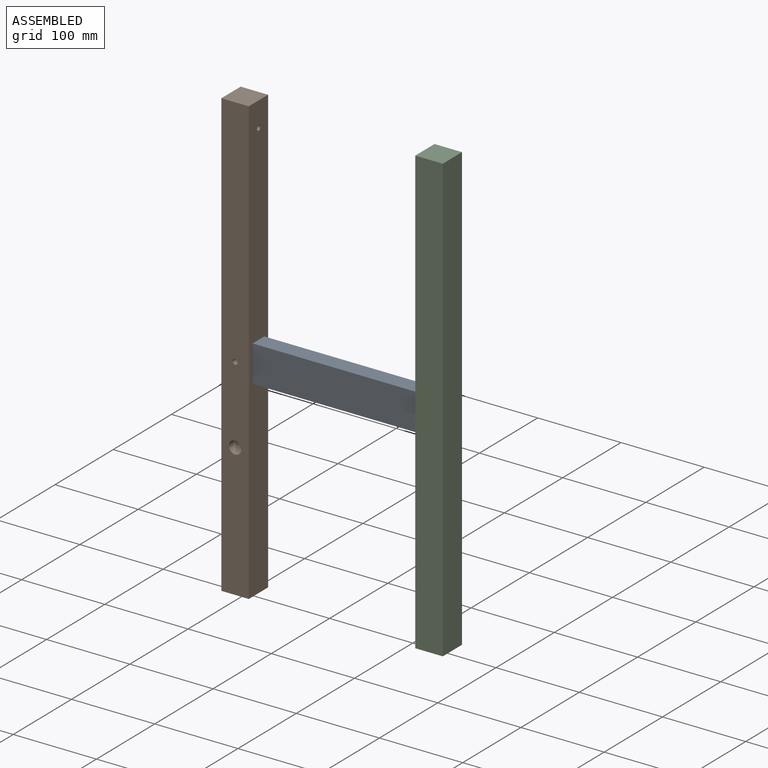
[diagram: assembled view]
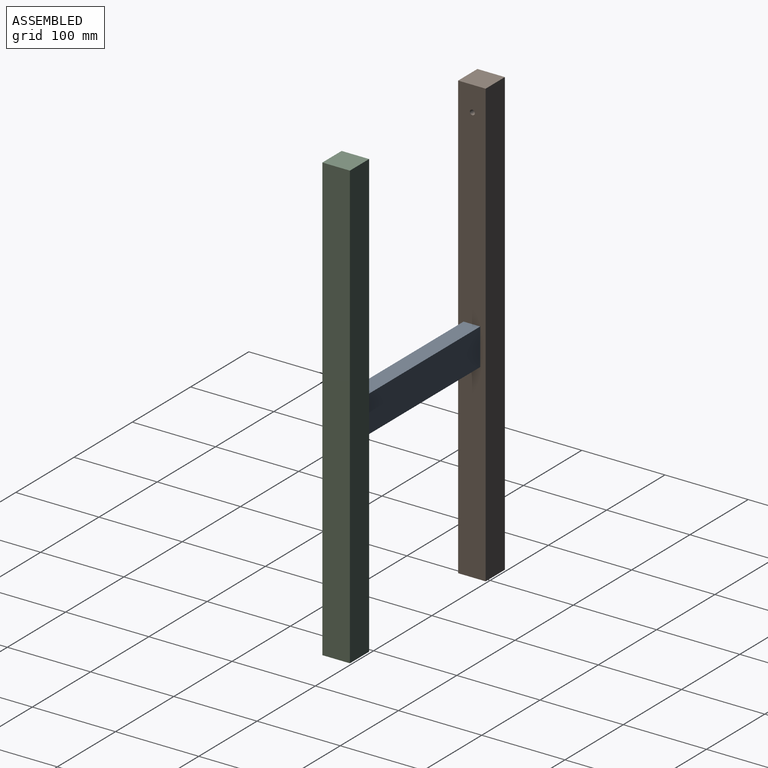
[diagram: assembled view, second angle]
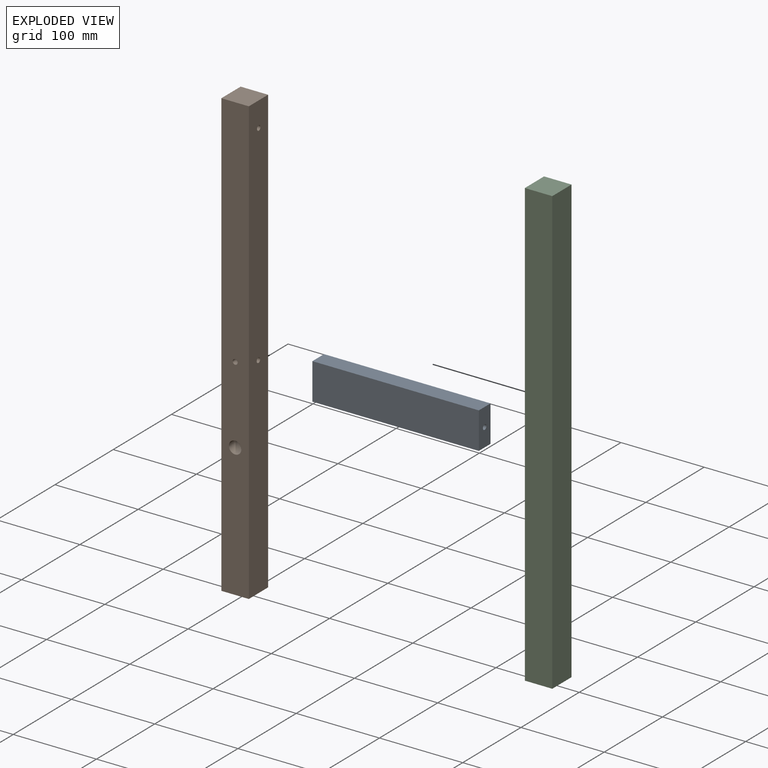
[diagram: exploded view]
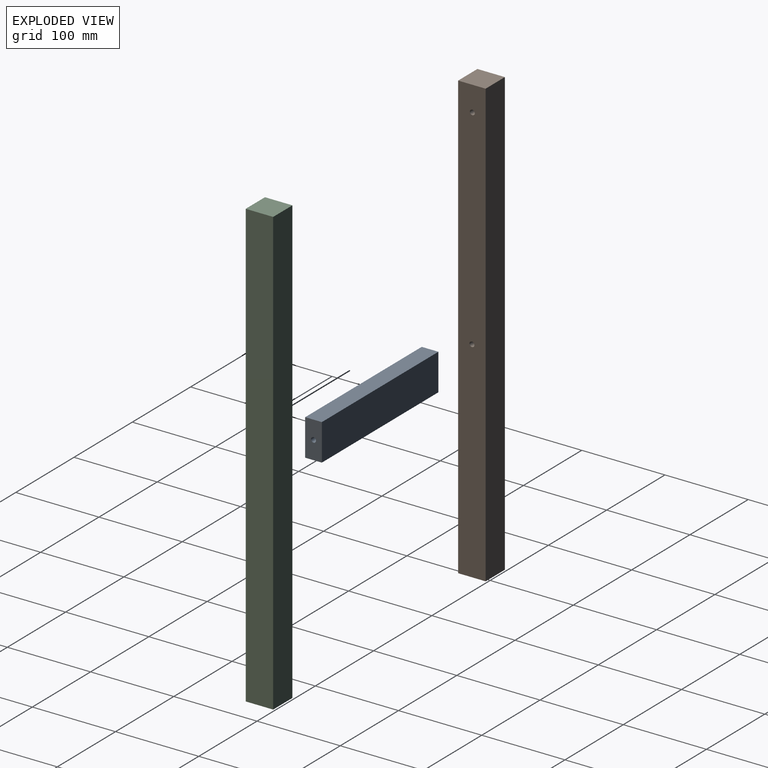
[diagram: exploded view, second angle]
ASSEMBLY  parts=3 mates=2
PART A: 10 faces, bbox 200x20x44 mm
  f0: plane 200x20mm, normal (0,0,1), area 4000mm2, adj f1,f3,f4,f5
  f1: plane 44x20mm, normal (-1,0,0), area 851.7mm2, adj f0,f2,f4,f5,f9
  f2: plane 200x20mm, normal (0,0,-1), area 4000mm2, adj f1,f3,f4,f5
  f3: plane 44x20mm, normal (1,0,0), area 851.7mm2, adj f0,f2,f4,f5,f7
  f4: plane 200x44mm, normal (0,-1,0), area 8800mm2, adj f0,f1,f2,f3
  f5: plane 200x44mm, normal (0,1,0), area 8800mm2, adj f0,f1,f2,f3
  f6: cone r=0mm half-angle=59deg, axis (1,0,0), area 33mm2, adj f7
  f7: cylinder r=3mm len=15mm, axis (1,0,0), area 282.7mm2, adj f3,f6
  f8: cone r=0mm half-angle=59deg, axis (-1,0,0), area 33mm2, adj f9
  f9: cylinder r=3mm len=15mm, axis (-1,0,0), area 282.7mm2, adj f1,f8
PART B: 14 faces, bbox 33x33x535 mm
  f0: plane 33x33mm, normal (0,0,1), area 1089mm2, adj f1,f3,f4,f5
  f1: plane 535x33mm, normal (-1,0,0), area 17655mm2, adj f0,f2,f4,f5
  f2: plane 33x33mm, normal (0,0,-1), area 1089mm2, adj f1,f3,f4,f5
  f3: plane 535x33mm, normal (1,0,0), area 17598.5mm2, adj f0,f2,f4,f5,f7,f11
  f4: plane 535x33mm, normal (0,-1,0), area 17450mm2, adj f0,f1,f2,f3,f9,f13
  f5: plane 535x33mm, normal (0,1,0), area 17655mm2, adj f0,f1,f2,f3
  f6: cone r=0mm half-angle=59deg, axis (1,0,0), area 20.9mm2, adj f7,f8
  f7: cylinder r=3mm len=15mm, axis (1,0,0), area 276.6mm2, adj f3,f6,f9
  f8: cone r=0mm half-angle=59deg, axis (0,-1,0), area 20.9mm2, adj f6,f9
  f9: cylinder r=3mm len=15mm, axis (0,-1,0), area 276.6mm2, adj f4,f7,f8
  f10: cone r=0mm half-angle=59deg, axis (1,0,0), area 33mm2, adj f11
  f11: cylinder r=3mm len=15mm, axis (1,0,0), area 282.7mm2, adj f3,f10
  f12: cone r=0mm half-angle=59deg, axis (0,-1,0), area 206.2mm2, adj f13
  f13: cylinder r=7.5mm len=15mm, axis (0,-1,0), area 706.9mm2, adj f4,f12
PART C: 12 faces, bbox 33x33x535 mm
  f0: plane 33x33mm, normal (0,0,1), area 1089mm2, adj f1,f3,f4,f5
  f1: plane 535x33mm, normal (-1,0,0), area 17655mm2, adj f0,f2,f4,f5
  f2: plane 33x33mm, normal (0,0,-1), area 1089mm2, adj f1,f3,f4,f5
  f3: plane 535x33mm, normal (1,0,0), area 17655mm2, adj f0,f2,f4,f5
  f4: plane 535x33mm, normal (0,-1,0), area 17421.7mm2, adj f0,f1,f2,f3,f7,f9,f11
  f5: plane 535x33mm, normal (0,1,0), area 17655mm2, adj f0,f1,f2,f3
  f6: cone r=0mm half-angle=59deg, axis (0,-1,0), area 33mm2, adj f7
  f7: cylinder r=3mm len=15mm, axis (0,-1,0), area 282.7mm2, adj f4,f6
  f8: cone r=0mm half-angle=59deg, axis (0,-1,0), area 206.2mm2, adj f9
  f9: cylinder r=7.5mm len=15mm, axis (0,-1,0), area 706.9mm2, adj f4,f8
  f10: cone r=0mm half-angle=59deg, axis (0,-1,0), area 33mm2, adj f11
  f11: cylinder r=3mm len=15mm, axis (0,-1,0), area 282.7mm2, adj f4,f10
PLACE A t=(-88.16,-97.81,-17.42)mm
PLACE B t=(-162.91,-91.31,-23.22)mm
PLACE C rot(axis=(0,0,-1),90deg) t=(53.05,-141.34,-23.22)mm
MATE fastened C.f6 <-> A.f6  axis (-1,0,0) through (20.05,-107.81,3.37)mm
MATE fastened B.f6 <-> A.f6  axis (1,0,0) through (-179.95,-107.81,3.37)mm
